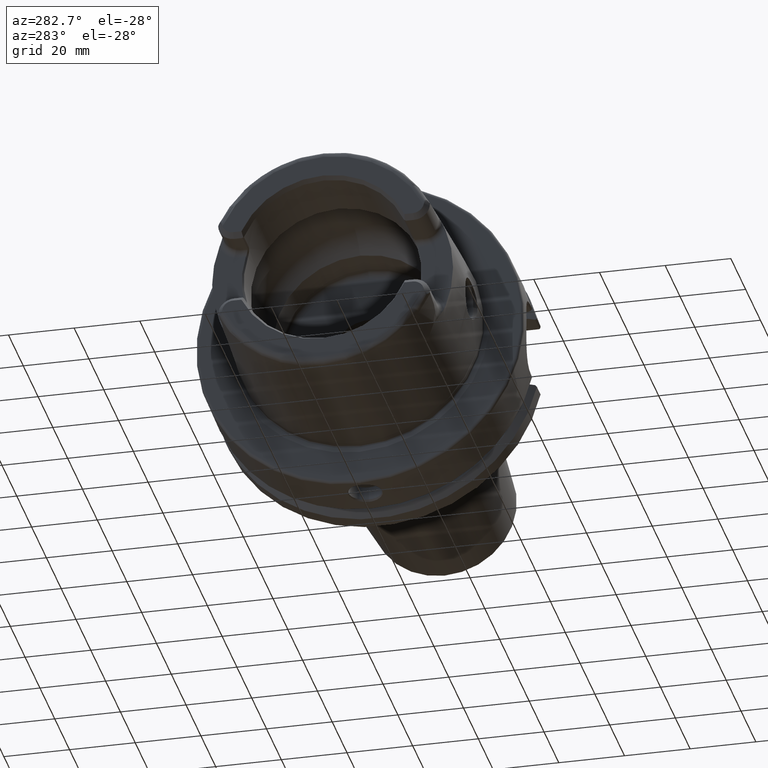
[diagram: clean part render]
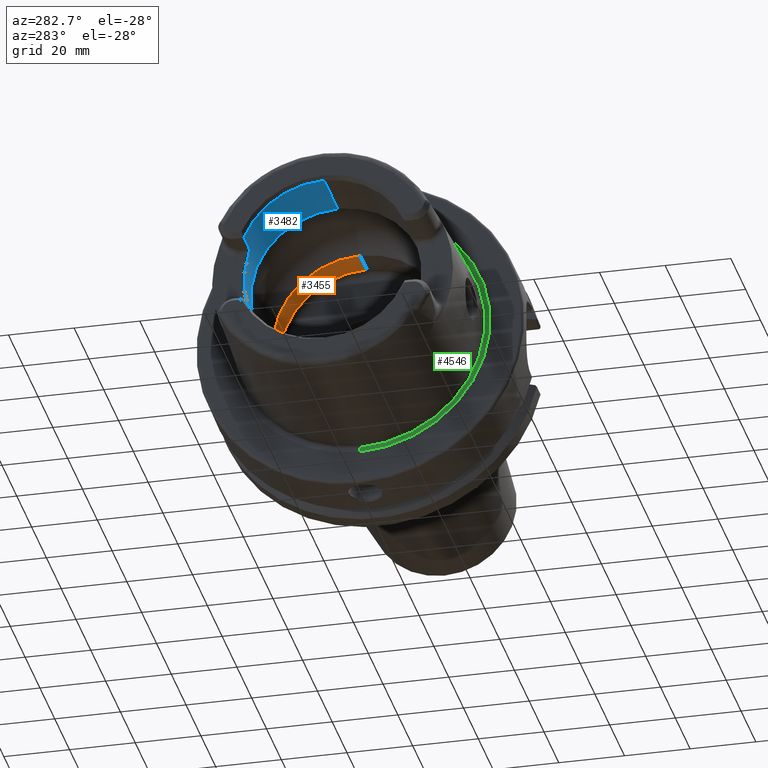
[diagram: same view with three faces highlighted in distinct colors, each labeled with its STEP entity id]
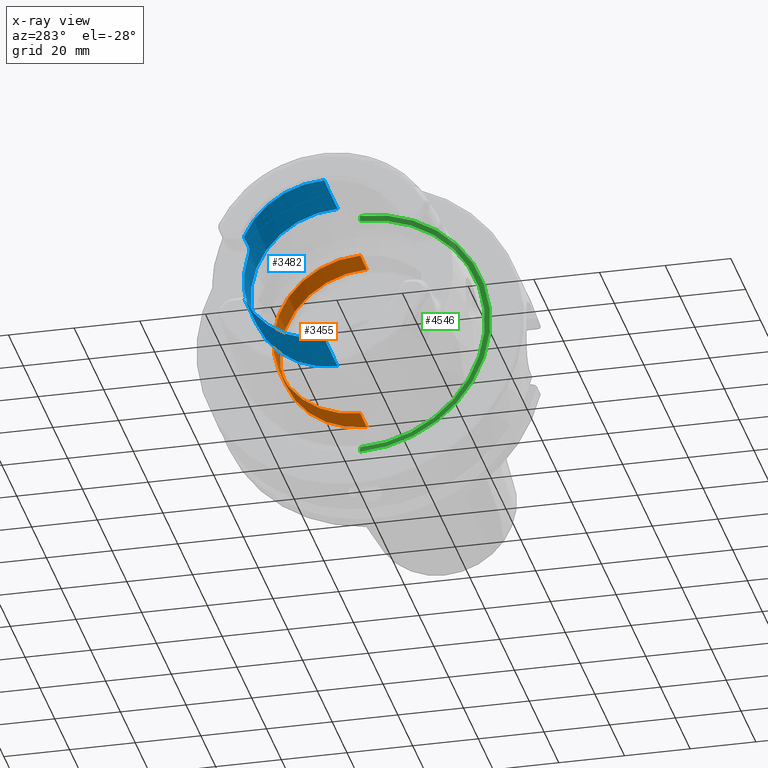
[diagram: x-ray of the same camera — body ghosted, the three highlighted faces saturated]
A machine part, auxiliary view with three faces highlighted in distinct colors.
The next image is the same camera in x-ray (body ghosted, the three faces saturated) — at least one of them is partly hidden behind the body in this view.
Their STEP definitions:

[orange] entity #3455 — the highlighted cylindrical surface (partial cylindrical patch) has radius 26.5 mm, axis along (1, 0, 0).
#227=CARTESIAN_POINT('',(3.259811553909E-1,0.E0,0.E0));
#228=DIRECTION('',(1.E0,0.E0,0.E0));
#229=DIRECTION('',(0.E0,0.E0,-1.E0));
#230=AXIS2_PLACEMENT_3D('',#227,#228,#229);
#232=CARTESIAN_POINT('',(9.3E0,0.E0,0.E0));
#233=DIRECTION('',(1.E0,0.E0,0.E0));
#234=DIRECTION('',(0.E0,0.E0,-1.E0));
#235=AXIS2_PLACEMENT_3D('',#232,#233,#234);
#285=DIRECTION('',(-1.E0,0.E0,0.E0));
#286=VECTOR('',#285,8.974018844609E0);
#287=CARTESIAN_POINT('',(9.3E0,0.E0,2.65E1));
#288=LINE('',#287,#286);
#294=DIRECTION('',(-1.E0,0.E0,0.E0));
#295=VECTOR('',#294,8.974018844609E0);
#296=CARTESIAN_POINT('',(9.3E0,0.E0,-2.65E1));
#297=LINE('',#296,#295);
#2784=CARTESIAN_POINT('',(3.259811553909E-1,0.E0,-2.65E1));
#2785=CARTESIAN_POINT('',(3.259811553909E-1,0.E0,2.65E1));
#2786=VERTEX_POINT('',#2784);
#2787=VERTEX_POINT('',#2785);
#2796=CARTESIAN_POINT('',(9.3E0,0.E0,-2.65E1));
#2797=CARTESIAN_POINT('',(9.3E0,0.E0,2.65E1));
#2798=VERTEX_POINT('',#2796);
#2799=VERTEX_POINT('',#2797);
#3440=CARTESIAN_POINT('',(0.E0,0.E0,0.E0));
#3441=DIRECTION('',(1.E0,0.E0,0.E0));
#3442=DIRECTION('',(0.E0,0.E0,1.E0));
#3443=AXIS2_PLACEMENT_3D('',#3440,#3441,#3442);
#3444=CYLINDRICAL_SURFACE('',#3443,2.65E1);
#3446=ORIENTED_EDGE('',*,*,#3445,.T.);
#3448=ORIENTED_EDGE('',*,*,#3447,.T.);
#3450=ORIENTED_EDGE('',*,*,#3449,.F.);
#3452=ORIENTED_EDGE('',*,*,#3451,.F.);
#3453=EDGE_LOOP('',(#3446,#3448,#3450,#3452));
#3454=FACE_OUTER_BOUND('',#3453,.F.);
#3455=ADVANCED_FACE('',(#3454),#3444,.F.);
#231=CIRCLE('',#230,2.65E1);
#236=CIRCLE('',#235,2.65E1);
#3445=EDGE_CURVE('',#2798,#2786,#297,.T.);
#3447=EDGE_CURVE('',#2786,#2787,#231,.T.);
#3449=EDGE_CURVE('',#2799,#2787,#288,.T.);
#3451=EDGE_CURVE('',#2798,#2799,#236,.T.);

[blue] entity #3482 — the highlighted cylindrical surface (partial cylindrical patch) has radius 26.5 mm, axis along (1, 0, 0).
#237=CARTESIAN_POINT('',(-4.85E1,0.E0,0.E0));
#238=DIRECTION('',(1.E0,0.E0,0.E0));
#239=DIRECTION('',(0.E0,0.E0,-1.E0));
#240=AXIS2_PLACEMENT_3D('',#237,#238,#239);
#242=DIRECTION('',(-1.E0,-2.003659559567E-10,-3.466355579106E-10));
#243=VECTOR('',#242,6.499999678846E0);
#244=CARTESIAN_POINT('',(-4.200000032114E1,2.440989828297E1,-1.031537036812E1));
#245=LINE('',#244,#243);
#246=CARTESIAN_POINT('',(-3.949999999140E1,2.530699866065E1,-7.861667688007E0));
#247=CARTESIAN_POINT('',(-3.949795731454E1,2.523750189404E1,-8.085380378471E0));
#248=CARTESIAN_POINT('',(-3.956038447328E1,2.509761390786E1,-8.515347360772E0));
#249=CARTESIAN_POINT('',(-3.982663656548E1,2.487835176005E1,-9.134757987534E0));
#250=CARTESIAN_POINT('',(-4.024625699068E1,2.468206325073E1,-9.650053877008E0));
#251=CARTESIAN_POINT('',(-4.077947187094E1,2.452693438204E1,-1.003573344464E1));
#252=CARTESIAN_POINT('',(-4.138865352483E1,2.443047707860E1,-1.026689735567E1));
#253=CARTESIAN_POINT('',(-4.179354293840E1,2.440937373222E1,-1.031661164499E1));
#254=CARTESIAN_POINT('',(-4.200000032114E1,2.440989828297E1,-1.031537036812E1));
#256=CARTESIAN_POINT('',(-3.95E1,0.E0,0.E0));
#257=DIRECTION('',(-1.E0,0.E0,0.E0));
#258=DIRECTION('',(0.E0,9.549810934720E-1,2.966666666667E-1));
#259=AXIS2_PLACEMENT_3D('',#256,#257,#258);
#261=CARTESIAN_POINT('',(-4.200000001470E1,2.440989828171E1,1.031537037033E1));
#262=CARTESIAN_POINT('',(-4.178761129814E1,2.440975345339E1,1.031571308654E1));
#263=CARTESIAN_POINT('',(-4.137465751293E1,2.443170503768E1,1.026399809126E1));
#264=CARTESIAN_POINT('',(-4.077213940814E1,2.452889721140E1,1.003092465579E1));
#265=CARTESIAN_POINT('',(-4.024222096528E1,2.468349085380E1,9.646427129501E0));
#266=CARTESIAN_POINT('',(-3.982179537278E1,2.488114908925E1,9.127218319802E0));
#267=CARTESIAN_POINT('',(-3.955862203616E1,2.510023912486E1,8.507517729796E0));
#268=CARTESIAN_POINT('',(-3.949790263096E1,2.523852513593E1,8.082086529237E0));
#269=CARTESIAN_POINT('',(-3.949999998537E1,2.530699843276E1,7.861668426269E0));
#271=DIRECTION('',(1.E0,5.226861690345E-12,-6.086071831223E-12));
#272=VECTOR('',#271,6.499999985293E0);
#273=CARTESIAN_POINT('',(-4.85E1,2.440989828168E1,1.031537037037E1));
#274=LINE('',#273,#272);
#275=CARTESIAN_POINT('',(-4.85E1,0.E0,0.E0));
#276=DIRECTION('',(1.E0,0.E0,0.E0));
#277=DIRECTION('',(0.E0,9.211282370446E-1,3.892592592593E-1));
#278=AXIS2_PLACEMENT_3D('',#275,#276,#277);
#280=CARTESIAN_POINT('',(-3.000337567297E1,0.E0,0.E0));
#281=DIRECTION('',(1.E0,0.E0,0.E0));
#282=DIRECTION('',(0.E0,0.E0,-1.E0));
#283=AXIS2_PLACEMENT_3D('',#280,#281,#282);
#308=DIRECTION('',(-1.E0,-5.551588003877E-9,2.922803554237E-11));
#309=VECTOR('',#308,1.849662432609E1);
#310=CARTESIAN_POINT('',(-3.000337567297E1,0.E0,-2.65E1));
#311=LINE('',#310,#309);
#317=DIRECTION('',(-1.E0,5.551588026347E-9,-2.922649895337E-11));
#318=VECTOR('',#317,1.849662432609E1);
#319=CARTESIAN_POINT('',(-3.000337567297E1,0.E0,2.65E1));
#320=LINE('',#319,#318);
#2780=CARTESIAN_POINT('',(-3.000337567297E1,0.E0,-2.65E1));
#2781=CARTESIAN_POINT('',(-3.000337567297E1,0.E0,2.65E1));
#2782=VERTEX_POINT('',#2780);
#2783=VERTEX_POINT('',#2781);
#2961=VERTEX_POINT('',#246);
#2962=VERTEX_POINT('',#254);
#2965=CARTESIAN_POINT('',(-3.95E1,2.530699897701E1,7.861666666667E0));
#2966=VERTEX_POINT('',#2965);
#2969=VERTEX_POINT('',#261);
#2981=CARTESIAN_POINT('',(-4.85E1,0.E0,-2.65E1));
#2982=CARTESIAN_POINT('',(-4.85E1,2.440989828168E1,-1.031537037037E1));
#2983=VERTEX_POINT('',#2981);
#2984=VERTEX_POINT('',#2982);
#2987=CARTESIAN_POINT('',(-4.85E1,0.E0,2.65E1));
#2989=VERTEX_POINT('',#2987);
#2991=CARTESIAN_POINT('',(-4.85E1,2.440989828168E1,1.031537037037E1));
#2992=VERTEX_POINT('',#2991);
#3456=CARTESIAN_POINT('',(0.E0,0.E0,0.E0));
#3457=DIRECTION('',(1.E0,0.E0,0.E0));
#3458=DIRECTION('',(0.E0,0.E0,1.E0));
#3459=AXIS2_PLACEMENT_3D('',#3456,#3457,#3458);
#3460=CYLINDRICAL_SURFACE('',#3459,2.65E1);
#3462=ORIENTED_EDGE('',*,*,#3461,.T.);
#3464=ORIENTED_EDGE('',*,*,#3463,.F.);
#3466=ORIENTED_EDGE('',*,*,#3465,.F.);
#3467=ORIENTED_EDGE('',*,*,#3430,.F.);
#3469=ORIENTED_EDGE('',*,*,#3468,.F.);
#3471=ORIENTED_EDGE('',*,*,#3470,.F.);
#3473=ORIENTED_EDGE('',*,*,#3472,.T.);
#3475=ORIENTED_EDGE('',*,*,#3474,.F.);
#3477=ORIENTED_EDGE('',*,*,#3476,.F.);
#3479=ORIENTED_EDGE('',*,*,#3478,.T.);
#3480=EDGE_LOOP('',(#3462,#3464,#3466,#3467,#3469,#3471,#3473,#3475,#3477,
#3479));
#3481=FACE_OUTER_BOUND('',#3480,.F.);
#3482=ADVANCED_FACE('',(#3481),#3460,.F.);
#241=CIRCLE('',#240,2.65E1);
#255=B_SPLINE_CURVE_WITH_KNOTS('',3,(#246,#247,#248,#249,#250,#251,#252,#253,
#254),.UNSPECIFIED.,.F.,.F.,(4,1,1,1,1,1,4),(0.E0,1.666666666667E-1,
3.333333333333E-1,5.E-1,6.666666666667E-1,8.333333333333E-1,1.E0),
.UNSPECIFIED.);
#260=CIRCLE('',#259,2.65E1);
#270=B_SPLINE_CURVE_WITH_KNOTS('',3,(#261,#262,#263,#264,#265,#266,#267,#268,
#269),.UNSPECIFIED.,.F.,.F.,(4,1,1,1,1,1,4),(0.E0,1.666666666667E-1,
3.333333333333E-1,5.E-1,6.666666666667E-1,8.333333333333E-1,1.E0),
.UNSPECIFIED.);
#279=CIRCLE('',#278,2.65E1);
#284=CIRCLE('',#283,2.65E1);
#3430=EDGE_CURVE('',#2966,#2961,#260,.T.);
#3461=EDGE_CURVE('',#2983,#2984,#241,.T.);
#3463=EDGE_CURVE('',#2962,#2984,#245,.T.);
#3465=EDGE_CURVE('',#2961,#2962,#255,.T.);
#3468=EDGE_CURVE('',#2969,#2966,#270,.T.);
#3470=EDGE_CURVE('',#2992,#2969,#274,.T.);
#3472=EDGE_CURVE('',#2992,#2989,#279,.T.);
#3474=EDGE_CURVE('',#2783,#2989,#320,.T.);
#3476=EDGE_CURVE('',#2782,#2783,#284,.T.);
#3478=EDGE_CURVE('',#2782,#2983,#311,.T.);

[green] entity #4546 — the highlighted conical surface has half-angle 82 deg.
#1213=CARTESIAN_POINT('',(2.310956174832E-1,0.E0,0.E0));
#1214=DIRECTION('',(-1.E0,0.E0,0.E0));
#1215=DIRECTION('',(0.E0,0.E0,-1.E0));
#1216=AXIS2_PLACEMENT_3D('',#1213,#1214,#1215);
#1218=DIRECTION('',(-1.391731009601E-1,8.749121540809E-13,9.902680687416E-1));
#1219=VECTOR('',#1218,1.660490539405E0);
#1220=CARTESIAN_POINT('',(2.310956174839E-1,-1.457643022583E-12,
3.803786924038E1));
#1221=LINE('',#1220,#1219);
#1222=DIRECTION('',(-1.391731009601E-1,-8.733834041103E-13,-9.902680687416E-1));
#1223=VECTOR('',#1222,1.660490539405E0);
#1224=CARTESIAN_POINT('',(2.310956174839E-1,1.455104547720E-12,
-3.803786924038E1));
#1225=LINE('',#1224,#1223);
#1255=CARTESIAN_POINT('',(0.E0,0.E0,0.E0));
#1256=DIRECTION('',(1.E0,0.E0,0.E0));
#1257=DIRECTION('',(0.E0,0.E0,1.E0));
#1258=AXIS2_PLACEMENT_3D('',#1255,#1256,#1257);
#2816=CARTESIAN_POINT('',(0.E0,0.E0,-3.96822E1));
#2817=CARTESIAN_POINT('',(0.E0,0.E0,3.96822E1));
#2818=VERTEX_POINT('',#2816);
#2819=VERTEX_POINT('',#2817);
#2826=CARTESIAN_POINT('',(2.310956174832E-1,0.E0,-3.803786924038E1));
#2827=CARTESIAN_POINT('',(2.310956174832E-1,0.E0,3.803786924038E1));
#2828=VERTEX_POINT('',#2826);
#2829=VERTEX_POINT('',#2827);
#4532=CARTESIAN_POINT('',(1.155478087416E-1,0.E0,0.E0));
#4533=DIRECTION('',(-1.E0,0.E0,0.E0));
#4534=DIRECTION('',(0.E0,0.E0,-1.E0));
#4535=AXIS2_PLACEMENT_3D('',#4532,#4533,#4534);
#4536=CONICAL_SURFACE('',#4535,3.886003462019E1,8.2E1);
#4537=ORIENTED_EDGE('',*,*,#4522,.T.);
#4539=ORIENTED_EDGE('',*,*,#4538,.T.);
#4541=ORIENTED_EDGE('',*,*,#4540,.T.);
#4543=ORIENTED_EDGE('',*,*,#4542,.F.);
#4544=EDGE_LOOP('',(#4537,#4539,#4541,#4543));
#4545=FACE_OUTER_BOUND('',#4544,.F.);
#4546=ADVANCED_FACE('',(#4545),#4536,.F.);
#1217=CIRCLE('',#1216,3.803786924038E1);
#1259=CIRCLE('',#1258,3.96822E1);
#4522=EDGE_CURVE('',#2828,#2829,#1217,.T.);
#4538=EDGE_CURVE('',#2829,#2819,#1221,.T.);
#4540=EDGE_CURVE('',#2819,#2818,#1259,.T.);
#4542=EDGE_CURVE('',#2828,#2818,#1225,.T.);